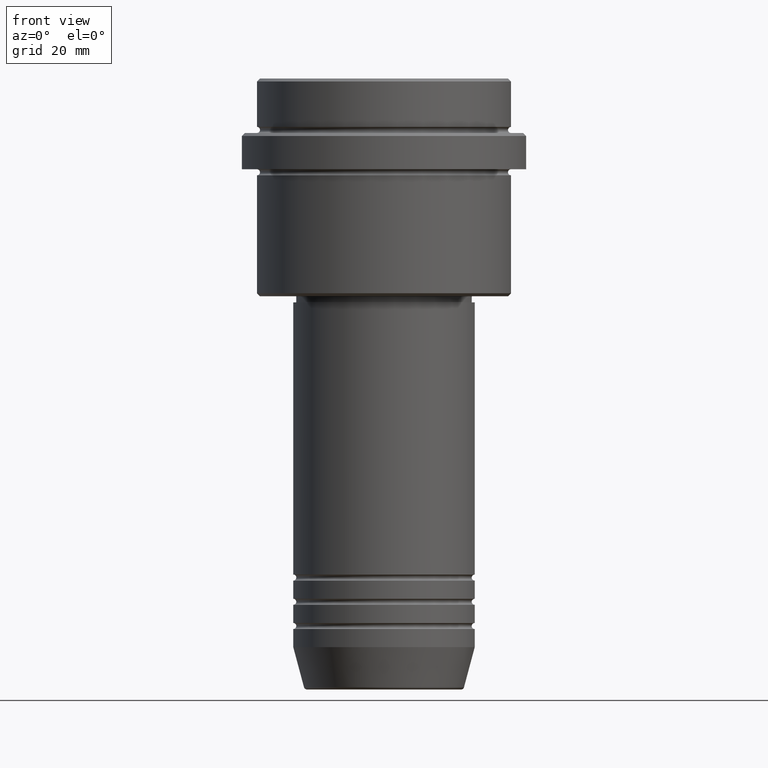
[diagram: clean part render]
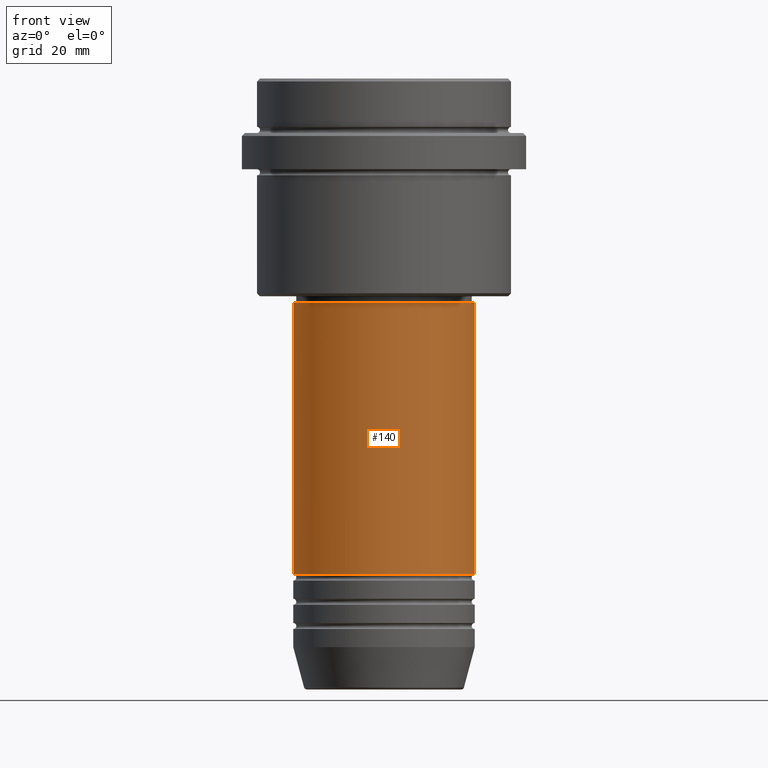
[diagram: same view with one face highlighted and labeled with its STEP entity id]
A machine part, front view. The second image highlights one B-rep face of the part: STEP entity #140.
In plain terms, the highlighted cylindrical surface (partial cylindrical patch) has radius 15 mm, axis along (-0, -0, 1).
Its self-contained STEP definition (entity closure, byte-faithful):
#140 = ADVANCED_FACE ( 'NONE', ( #1047 ), #683, .T. ) ;
#155 = EDGE_CURVE ( 'NONE', #1269, #711, #816, .T. ) ;
#161 = ORIENTED_EDGE ( 'NONE', *, *, #953, .T. ) ;
#173 = CARTESIAN_POINT ( 'NONE',  ( -15.00000000000000000, 1.836970198721029589E-15, -81.99999999999987210 ) ) ;
#198 = VERTEX_POINT ( 'NONE', #950 ) ;
#325 = LINE ( 'NONE', #1276, #1109 ) ;
#334 = CARTESIAN_POINT ( 'NONE',  ( 0.000000000000000000, 0.000000000000000000, -36.99999999999998579 ) ) ;
#344 = ORIENTED_EDGE ( 'NONE', *, *, #1352, .F. ) ;
#422 = VERTEX_POINT ( 'NONE', #1176 ) ;
#425 = DIRECTION ( 'NONE',  ( 1.000000000000000000, 0.000000000000000000, 0.000000000000000000 ) ) ;
#442 = VECTOR ( 'NONE', #1253, 1000.000000000000000 ) ;
#462 = ORIENTED_EDGE ( 'NONE', *, *, #1289, .T. ) ;
#486 = CIRCLE ( 'NONE', #689, 15.00000000000000000 ) ;
#528 = DIRECTION ( 'NONE',  ( -0.000000000000000000, -0.000000000000000000, 1.000000000000000000 ) ) ;
#610 = DIRECTION ( 'NONE',  ( -0.000000000000000000, -0.000000000000000000, 1.000000000000000000 ) ) ;
#648 = CARTESIAN_POINT ( 'NONE',  ( -15.00000000000000000, 1.836970198721029589E-15, -36.99999999999998579 ) ) ;
#655 = AXIS2_PLACEMENT_3D ( 'NONE', #864, #528, #1171 ) ;
#683 = CYLINDRICAL_SURFACE ( 'NONE', #655, 15.00000000000000000 ) ;
#689 = AXIS2_PLACEMENT_3D ( 'NONE', #334, #840, #425 ) ;
#711 = VERTEX_POINT ( 'NONE', #648 ) ;
#725 = EDGE_LOOP ( 'NONE', ( #1003, #462, #161, #344 ) ) ;
#733 = DIRECTION ( 'NONE',  ( 1.000000000000000000, 0.000000000000000000, 0.000000000000000000 ) ) ;
#814 = CIRCLE ( 'NONE', #907, 15.00000000000000000 ) ;
#816 = LINE ( 'NONE', #1054, #442 ) ;
#840 = DIRECTION ( 'NONE',  ( -0.000000000000000000, -0.000000000000000000, 1.000000000000000000 ) ) ;
#864 = CARTESIAN_POINT ( 'NONE',  ( 0.000000000000000000, 0.000000000000000000, 0.000000000000000000 ) ) ;
#907 = AXIS2_PLACEMENT_3D ( 'NONE', #1146, #610, #733 ) ;
#950 = CARTESIAN_POINT ( 'NONE',  ( 15.00000000000000000, 0.000000000000000000, -81.99999999999987210 ) ) ;
#953 = EDGE_CURVE ( 'NONE', #198, #422, #325, .T. ) ;
#1003 = ORIENTED_EDGE ( 'NONE', *, *, #155, .F. ) ;
#1047 = FACE_OUTER_BOUND ( 'NONE', #725, .T. ) ;
#1054 = CARTESIAN_POINT ( 'NONE',  ( -15.00000000000000000, 1.836970198721029589E-15, 0.000000000000000000 ) ) ;
#1109 = VECTOR ( 'NONE', #1184, 1000.000000000000000 ) ;
#1146 = CARTESIAN_POINT ( 'NONE',  ( 0.000000000000000000, 0.000000000000000000, -81.99999999999987210 ) ) ;
#1171 = DIRECTION ( 'NONE',  ( 1.000000000000000000, 0.000000000000000000, 0.000000000000000000 ) ) ;
#1176 = CARTESIAN_POINT ( 'NONE',  ( 15.00000000000000000, 0.000000000000000000, -36.99999999999998579 ) ) ;
#1184 = DIRECTION ( 'NONE',  ( -0.000000000000000000, -0.000000000000000000, 1.000000000000000000 ) ) ;
#1253 = DIRECTION ( 'NONE',  ( -0.000000000000000000, -0.000000000000000000, 1.000000000000000000 ) ) ;
#1269 = VERTEX_POINT ( 'NONE', #173 ) ;
#1276 = CARTESIAN_POINT ( 'NONE',  ( 15.00000000000000000, 0.000000000000000000, 0.000000000000000000 ) ) ;
#1289 = EDGE_CURVE ( 'NONE', #1269, #198, #814, .T. ) ;
#1352 = EDGE_CURVE ( 'NONE', #711, #422, #486, .T. ) ;